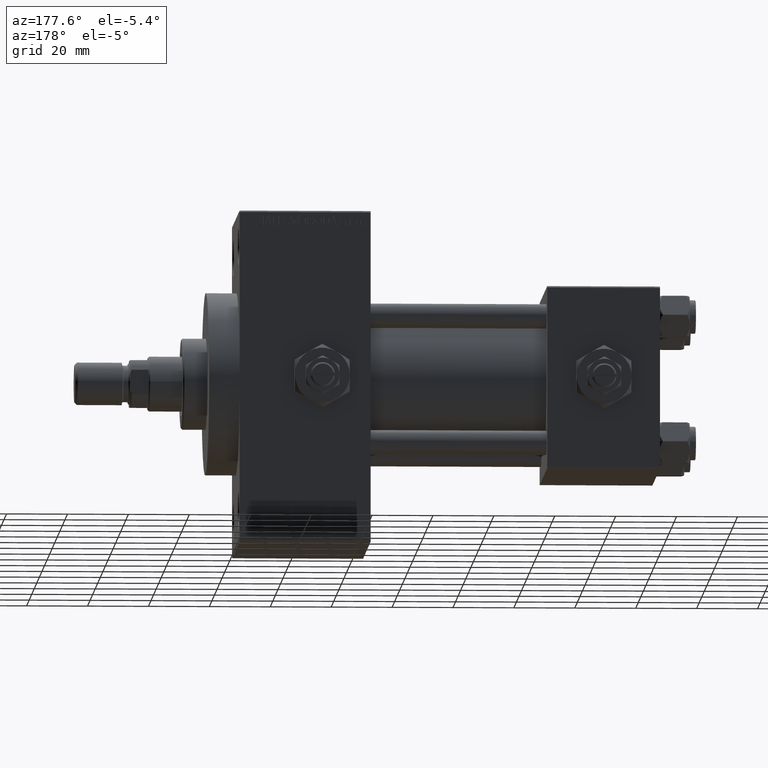
[diagram: clean part render]
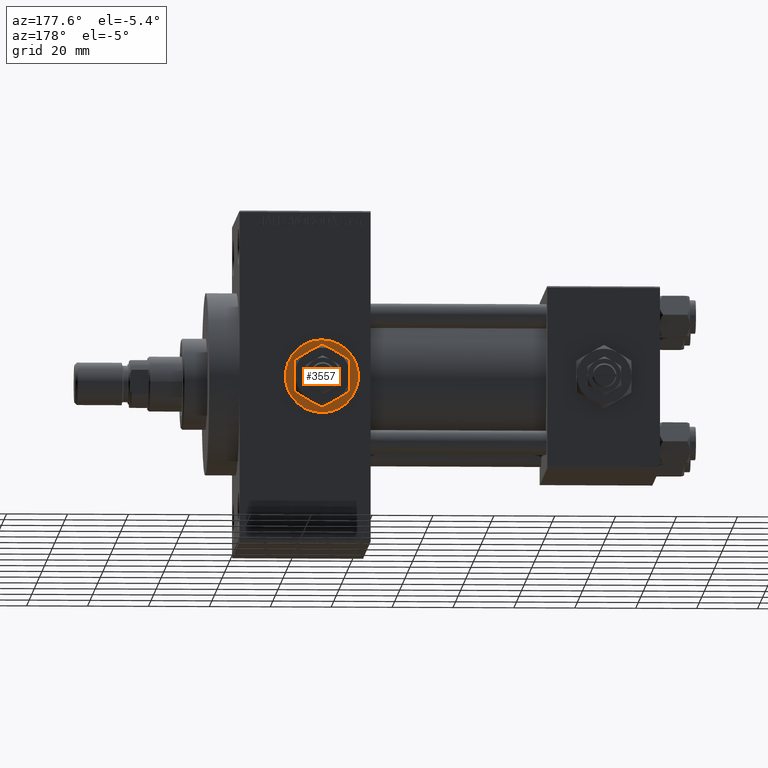
[diagram: same view with one face highlighted and labeled with its STEP entity id]
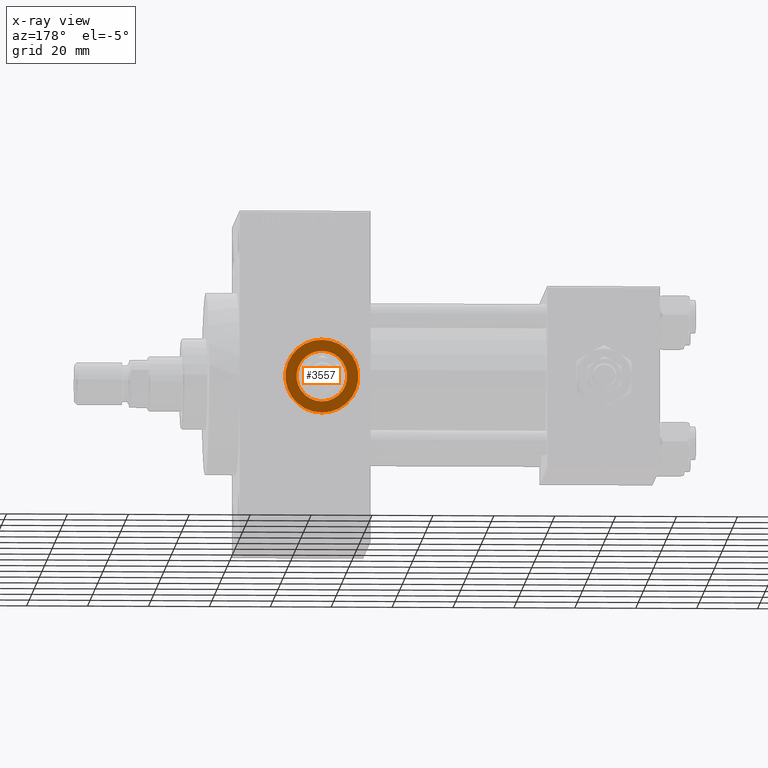
[diagram: x-ray of the same camera — body ghosted, the highlighted face saturated]
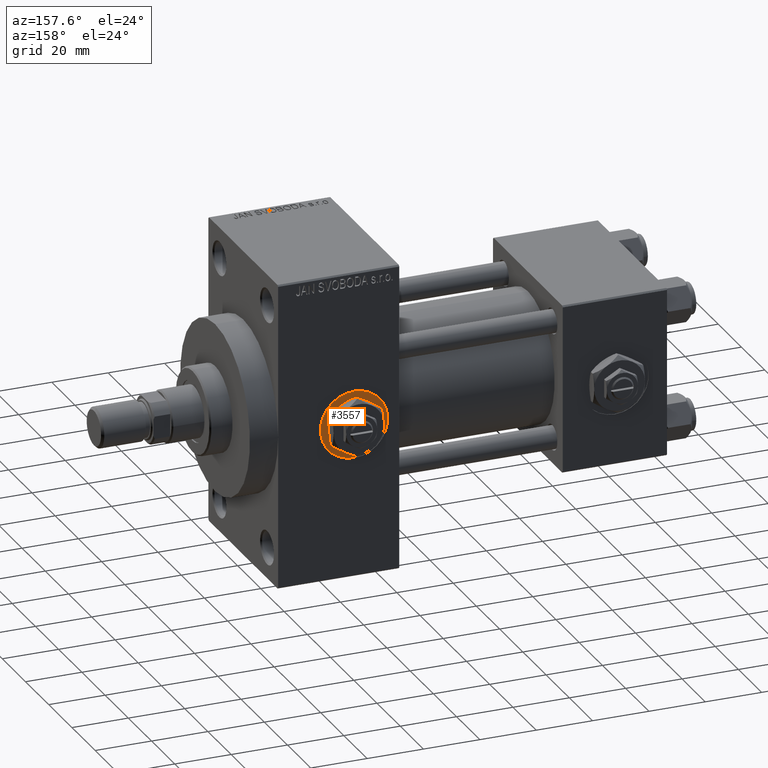
[diagram: same view with one face highlighted and labeled with its STEP entity id]
A machine part, auxiliary view. The second image highlights one B-rep face of the part: STEP entity #3557.
The next image is the same camera in x-ray: the body ghosted, the highlighted face saturated — about 0% of this face is hidden behind the body in this view.
A second angle (auxiliary view) of the same face is appended — the face is thin or edge-on in the first view.
In plain terms, the highlighted planar face has unit normal (0, 1, 0).
Its self-contained STEP definition (entity closure, byte-faithful):
#203 = CARTESIAN_POINT ( 'NONE',  ( 111.0000000000000000, 29.79999999999999716, 11.99999999999998934 ) ) ;
#226 = CARTESIAN_POINT ( 'NONE',  ( 111.0000000000000000, 29.79999999999999716, 0.000000000000000000 ) ) ;
#557 = EDGE_CURVE ( 'NONE', #44545, #6828, #17807, .T. ) ;
#1762 = FACE_OUTER_BOUND ( 'NONE', #43583, .T. ) ;
#3557 = ADVANCED_FACE ( 'NONE', ( #47301, #1762 ), #39769, .T. ) ;
#5169 = EDGE_LOOP ( 'NONE', ( #36389, #10259 ) ) ;
#6584 = AXIS2_PLACEMENT_3D ( 'NONE', #45348, #25979, #6856 ) ;
#6828 = VERTEX_POINT ( 'NONE', #48875 ) ;
#6856 = DIRECTION ( 'NONE',  ( 0.000000000000000000, 0.000000000000000000, 1.000000000000000000 ) ) ;
#8928 = AXIS2_PLACEMENT_3D ( 'NONE', #14012, #37168, #17534 ) ;
#9047 = CARTESIAN_POINT ( 'NONE',  ( 111.0000000000000000, 29.79999999999999716, 0.000000000000000000 ) ) ;
#10259 = ORIENTED_EDGE ( 'NONE', *, *, #46784, .F. ) ;
#13533 = AXIS2_PLACEMENT_3D ( 'NONE', #226, #41775, #26920 ) ;
#14012 = CARTESIAN_POINT ( 'NONE',  ( 111.0000000000000000, 29.79999999999999716, 0.000000000000000000 ) ) ;
#15002 = AXIS2_PLACEMENT_3D ( 'NONE', #9047, #40246, #24890 ) ;
#17534 = DIRECTION ( 'NONE',  ( 0.000000000000000000, 0.000000000000000000, 1.000000000000000000 ) ) ;
#17807 = CIRCLE ( 'NONE', #6584, 8.329999999999998295 ) ;
#24890 = DIRECTION ( 'NONE',  ( 0.000000000000000000, 0.000000000000000000, 1.000000000000000000 ) ) ;
#25979 = DIRECTION ( 'NONE',  ( 0.000000000000000000, 1.000000000000000000, 0.000000000000000000 ) ) ;
#26920 = DIRECTION ( 'NONE',  ( 0.000000000000000000, 0.000000000000000000, 1.000000000000000000 ) ) ;
#28014 = CIRCLE ( 'NONE', #13533, 11.99999999999998934 ) ;
#28451 = DIRECTION ( 'NONE',  ( 0.000000000000000000, -0.000000000000000000, 1.000000000000000000 ) ) ;
#28701 = ORIENTED_EDGE ( 'NONE', *, *, #33839, .T. ) ;
#30050 = CARTESIAN_POINT ( 'NONE',  ( 111.0000000000000000, 29.79999999999999716, -11.99999999999998934 ) ) ;
#30299 = CIRCLE ( 'NONE', #15002, 11.99999999999998934 ) ;
#32203 = CARTESIAN_POINT ( 'NONE',  ( 111.0000000000000000, 29.79999999999999716, 0.000000000000000000 ) ) ;
#33839 = EDGE_CURVE ( 'NONE', #47427, #35523, #30299, .T. ) ;
#34642 = CIRCLE ( 'NONE', #8928, 8.329999999999998295 ) ;
#34673 = ORIENTED_EDGE ( 'NONE', *, *, #37405, .T. ) ;
#34736 = CARTESIAN_POINT ( 'NONE',  ( 111.0000000000000000, 29.79999999999999716, 8.329999999999998295 ) ) ;
#35523 = VERTEX_POINT ( 'NONE', #203 ) ;
#36389 = ORIENTED_EDGE ( 'NONE', *, *, #557, .F. ) ;
#36439 = AXIS2_PLACEMENT_3D ( 'NONE', #32203, #47552, #28451 ) ;
#37168 = DIRECTION ( 'NONE',  ( 0.000000000000000000, 1.000000000000000000, 0.000000000000000000 ) ) ;
#37405 = EDGE_CURVE ( 'NONE', #35523, #47427, #28014, .T. ) ;
#39769 = PLANE ( 'NONE',  #36439 ) ;
#40246 = DIRECTION ( 'NONE',  ( 0.000000000000000000, 1.000000000000000000, 0.000000000000000000 ) ) ;
#41775 = DIRECTION ( 'NONE',  ( 0.000000000000000000, 1.000000000000000000, 0.000000000000000000 ) ) ;
#43583 = EDGE_LOOP ( 'NONE', ( #34673, #28701 ) ) ;
#44545 = VERTEX_POINT ( 'NONE', #34736 ) ;
#45348 = CARTESIAN_POINT ( 'NONE',  ( 111.0000000000000000, 29.79999999999999716, 0.000000000000000000 ) ) ;
#46784 = EDGE_CURVE ( 'NONE', #6828, #44545, #34642, .T. ) ;
#47301 = FACE_BOUND ( 'NONE', #5169, .T. ) ;
#47427 = VERTEX_POINT ( 'NONE', #30050 ) ;
#47552 = DIRECTION ( 'NONE',  ( 0.000000000000000000, 1.000000000000000000, 0.000000000000000000 ) ) ;
#48875 = CARTESIAN_POINT ( 'NONE',  ( 111.0000000000000000, 29.79999999999999716, -8.329999999999998295 ) ) ;